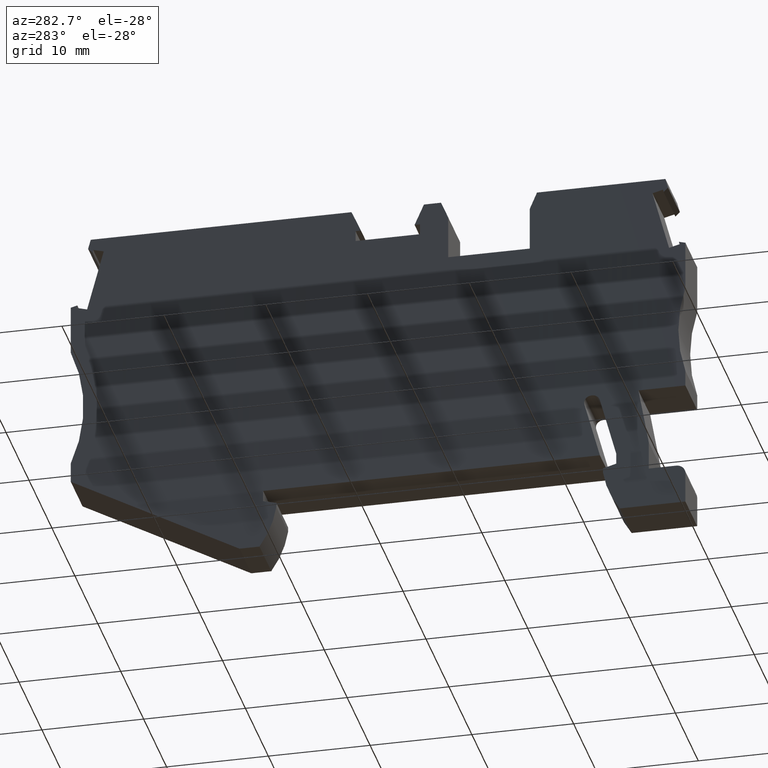
[diagram: clean part render]
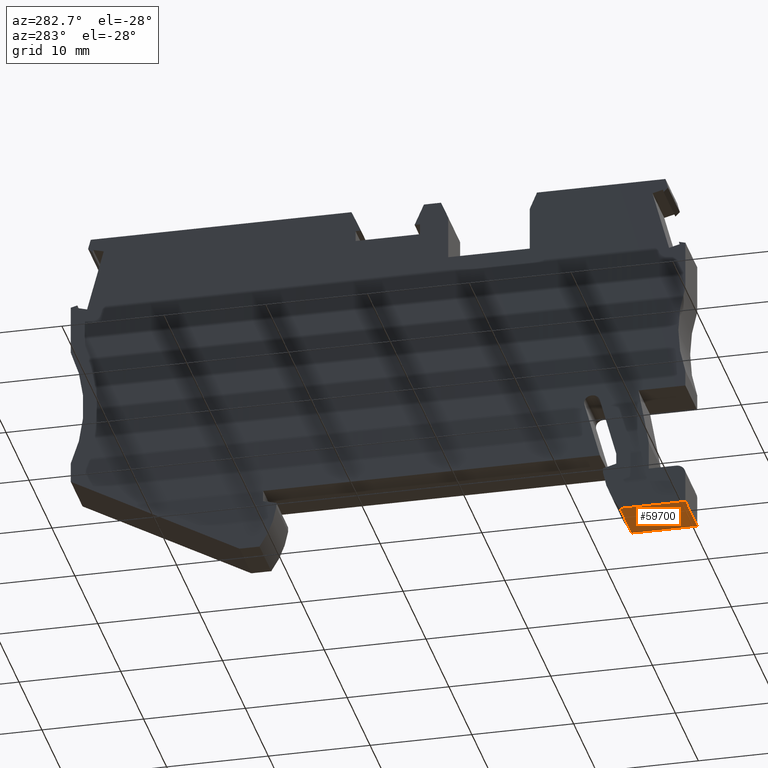
[diagram: same view with one face highlighted and labeled with its STEP entity id]
A machine part, auxiliary view. The second image highlights one B-rep face of the part: STEP entity #59700.
In plain terms, the highlighted planar face has unit normal (-0, -0, -1).
Its self-contained STEP definition (entity closure, byte-faithful):
#5950=CARTESIAN_POINT('',(-15.9267764314572,-44.4000000000014,48.52));
#5960=VERTEX_POINT('',#5950);
#5990=CARTESIAN_POINT('',(-15.9267764314572,-44.4000000000015,53.67));
#6000=DIRECTION('',(0.,0.,1.));
#6010=VECTOR('',#6000,1.);
#6020=LINE('',#5990,#6010);
#6030=CARTESIAN_POINT('',(-15.9267764314572,-44.4000000000014,53.67));
#6040=VERTEX_POINT('',#6030);
#6050=EDGE_CURVE('',#5960,#6040,#6020,.T.);
#33040=CARTESIAN_POINT('',(-22.3678327783247,-44.4000000000017,48.52));
#33050=VERTEX_POINT('',#33040);
#33080=CARTESIAN_POINT('',(-35.0240117337573,-44.4000000000022,48.52));
#33090=DIRECTION('',(-1.,-3.8219427622721E-14,0.));
#33100=VECTOR('',#33090,1.);
#33110=LINE('',#33080,#33100);
#33120=EDGE_CURVE('',#5960,#33050,#33110,.T.);
#54990=CARTESIAN_POINT('',(-35.0240117337573,-44.4000000000022,53.67));
#55000=DIRECTION('',(-1.,-3.8219427622721E-14,0.));
#55010=VECTOR('',#55000,1.);
#55020=LINE('',#54990,#55010);
#55030=CARTESIAN_POINT('',(-22.3678327783247,-44.4000000000017,53.67));
#55040=VERTEX_POINT('',#55030);
#55050=EDGE_CURVE('',#6040,#55040,#55020,.T.);
#59540=CARTESIAN_POINT('',(-17.0366895198454,-44.4000000000015,48.52));
#59550=DIRECTION('',(3.8219427622721E-14,-1.,0.));
#59560=DIRECTION('',(1.,3.8219427622721E-14,0.));
#59570=AXIS2_PLACEMENT_3D('',#59540,#59550,#59560);
#59580=PLANE('',#59570);
#59590=CARTESIAN_POINT('',(-22.3678327783247,-44.4000000000017,53.67));
#59600=DIRECTION('',(0.,0.,-1.));
#59610=VECTOR('',#59600,1.);
#59620=LINE('',#59590,#59610);
#59630=EDGE_CURVE('',#55040,#33050,#59620,.T.);
#59640=ORIENTED_EDGE('',*,*,#59630,.T.);
#59650=ORIENTED_EDGE('',*,*,#55050,.T.);
#59660=ORIENTED_EDGE('',*,*,#6050,.T.);
#59670=ORIENTED_EDGE('',*,*,#33120,.F.);
#59680=EDGE_LOOP('',(#59670,#59660,#59650,#59640));
#59690=FACE_OUTER_BOUND('',#59680,.T.);
#59700=ADVANCED_FACE('',(#59690),#59580,.T.);